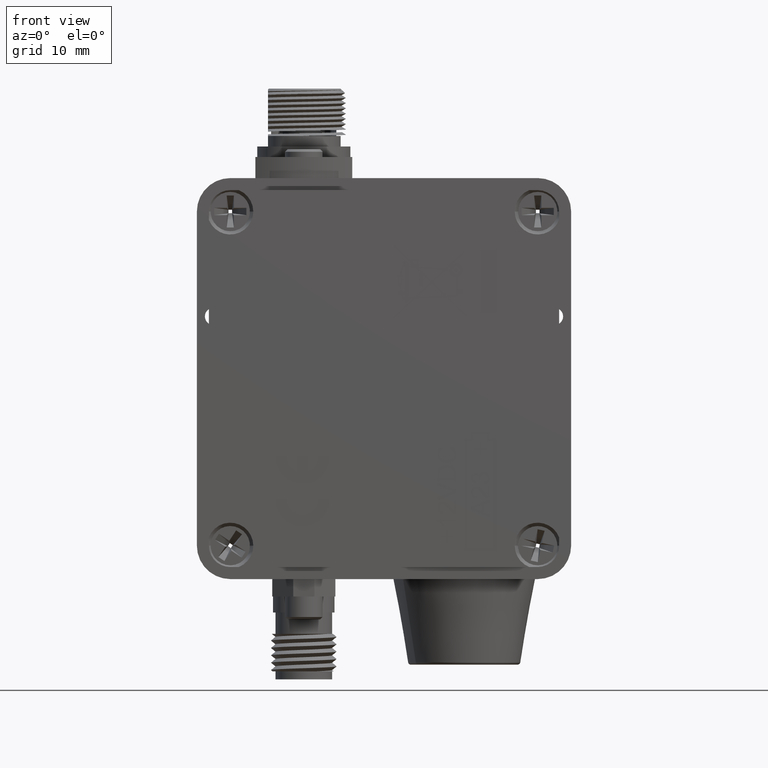
[diagram: clean part render]
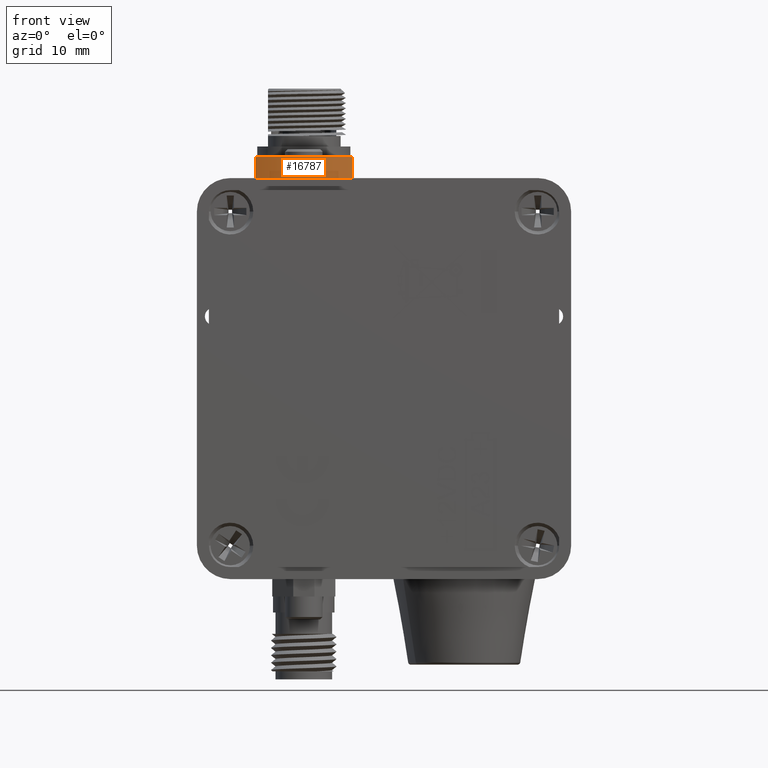
[diagram: same view with one face highlighted and labeled with its STEP entity id]
A machine part, front view. The second image highlights one B-rep face of the part: STEP entity #16787.
In plain terms, the highlighted cylindrical surface (partial cylindrical patch) has radius 9.5 mm, axis along (0, 0, -1).
Its self-contained STEP definition (entity closure, byte-faithful):
#16741 = VERTEX_POINT ( 'NONE', #45565 ) ;
#16787 = ADVANCED_FACE ( 'NONE', ( #45643 ), #45677, .T. ) ;
#16789 = EDGE_LOOP ( 'NONE', ( #16790, #16888, #16890, #16894 ) ) ;
#16790 = ORIENTED_EDGE ( 'NONE', *, *, #16792, .T. ) ;
#16792 = EDGE_CURVE ( 'NONE', #16828, #16741, #45673, .T. ) ;
#16828 = VERTEX_POINT ( 'NONE', #45682 ) ;
#16830 = EDGE_CURVE ( 'NONE', #16831, #16828, #45736, .T. ) ;
#16831 = VERTEX_POINT ( 'NONE', #45732 ) ;
#16839 = VERTEX_POINT ( 'NONE', #45757 ) ;
#16843 = EDGE_CURVE ( 'NONE', #16839, #16741, #45755, .T. ) ;
#16888 = ORIENTED_EDGE ( 'NONE', *, *, #16843, .F. ) ;
#16890 = ORIENTED_EDGE ( 'NONE', *, *, #16892, .F. ) ;
#16892 = EDGE_CURVE ( 'NONE', #16831, #16839, #45846, .T. ) ;
#16894 = ORIENTED_EDGE ( 'NONE', *, *, #16830, .T. ) ;
#45565 = CARTESIAN_POINT ( 'NONE',  ( -0.1188976377952756400, 0.07275435193202593700, 0.0000000000000000000 ) ) ;
#45643 = FACE_OUTER_BOUND ( 'NONE', #16789, .T. ) ;
#45670 = DIRECTION ( 'NONE',  ( 1.000000000000000000, 0.0000000000000000000, 0.0000000000000000000 ) ) ;
#45671 = DIRECTION ( 'NONE',  ( 0.0000000000000000000, 0.0000000000000000000, 1.000000000000000000 ) ) ;
#45672 = AXIS2_PLACEMENT_3D ( 'NONE', #45678, #45671, #45670 ) ;
#45673 = CIRCLE ( 'NONE', #45672, 0.3740157480314960600 ) ;
#45674 = DIRECTION ( 'NONE',  ( -1.000000000000000000, 0.0000000000000000000, 0.0000000000000000000 ) ) ;
#45675 = DIRECTION ( 'NONE',  ( 0.0000000000000000000, 0.0000000000000000000, -1.000000000000000000 ) ) ;
#45676 = AXIS2_PLACEMENT_3D ( 'NONE', #45679, #45675, #45674 ) ;
#45677 = CYLINDRICAL_SURFACE ( 'NONE', #45676, 0.3740157480314960100 ) ;
#45678 = CARTESIAN_POINT ( 'NONE',  ( -0.3000000000000000400, 0.4000000000000000200, 0.0000000000000000000 ) ) ;
#45679 = CARTESIAN_POINT ( 'NONE',  ( -0.3000000000000000400, 0.4000000000000000200, 0.07874015748031496000 ) ) ;
#45682 = CARTESIAN_POINT ( 'NONE',  ( -0.4811023622047244700, 0.07275435193202593700, 0.0000000000000000000 ) ) ;
#45732 = CARTESIAN_POINT ( 'NONE',  ( -0.4811023622047244700, 0.07275435193202593700, 0.07874015748031496000 ) ) ;
#45733 = DIRECTION ( 'NONE',  ( 0.0000000000000000000, 0.0000000000000000000, -1.000000000000000000 ) ) ;
#45734 = VECTOR ( 'NONE', #45733, 39.37007874015748100 ) ;
#45735 = CARTESIAN_POINT ( 'NONE',  ( -0.4811023622047244700, 0.07275435193202593700, 0.07874015748031496000 ) ) ;
#45736 = LINE ( 'NONE', #45735, #45734 ) ;
#45752 = DIRECTION ( 'NONE',  ( 0.0000000000000000000, 0.0000000000000000000, -1.000000000000000000 ) ) ;
#45753 = VECTOR ( 'NONE', #45752, 39.37007874015748100 ) ;
#45754 = CARTESIAN_POINT ( 'NONE',  ( -0.1188976377952756400, 0.07275435193202593700, 0.07874015748031496000 ) ) ;
#45755 = LINE ( 'NONE', #45754, #45753 ) ;
#45757 = CARTESIAN_POINT ( 'NONE',  ( -0.1188976377952756400, 0.07275435193202593700, 0.07874015748031496000 ) ) ;
#45842 = DIRECTION ( 'NONE',  ( 1.000000000000000000, 0.0000000000000000000, 0.0000000000000000000 ) ) ;
#45843 = DIRECTION ( 'NONE',  ( 0.0000000000000000000, 0.0000000000000000000, 1.000000000000000000 ) ) ;
#45844 = CARTESIAN_POINT ( 'NONE',  ( -0.3000000000000000400, 0.4000000000000000200, 0.07874015748031496000 ) ) ;
#45845 = AXIS2_PLACEMENT_3D ( 'NONE', #45844, #45843, #45842 ) ;
#45846 = CIRCLE ( 'NONE', #45845, 0.3740157480314960600 ) ;